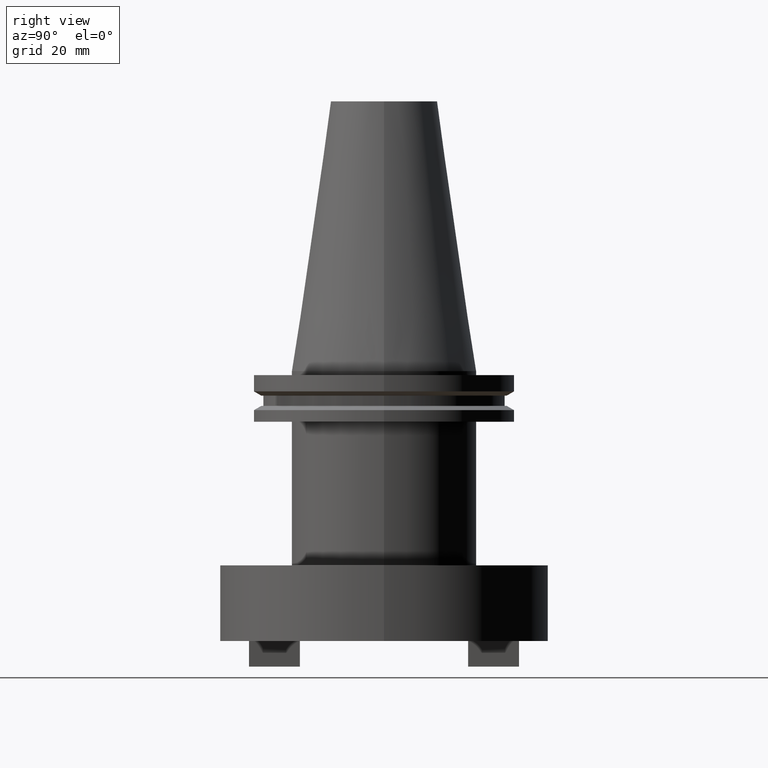
[diagram: clean part render]
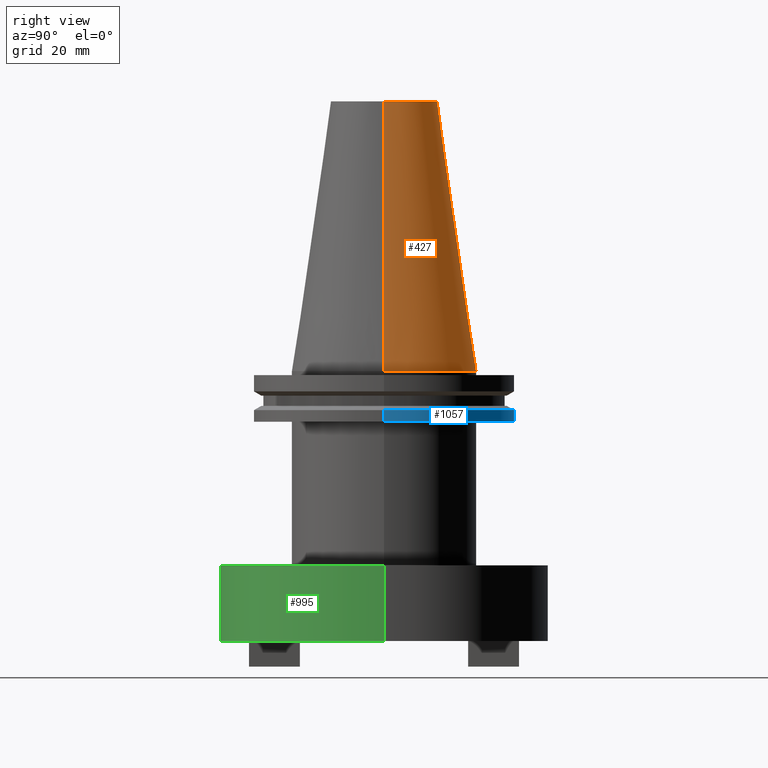
[diagram: same view with three faces highlighted in distinct colors, each labeled with its STEP entity id]
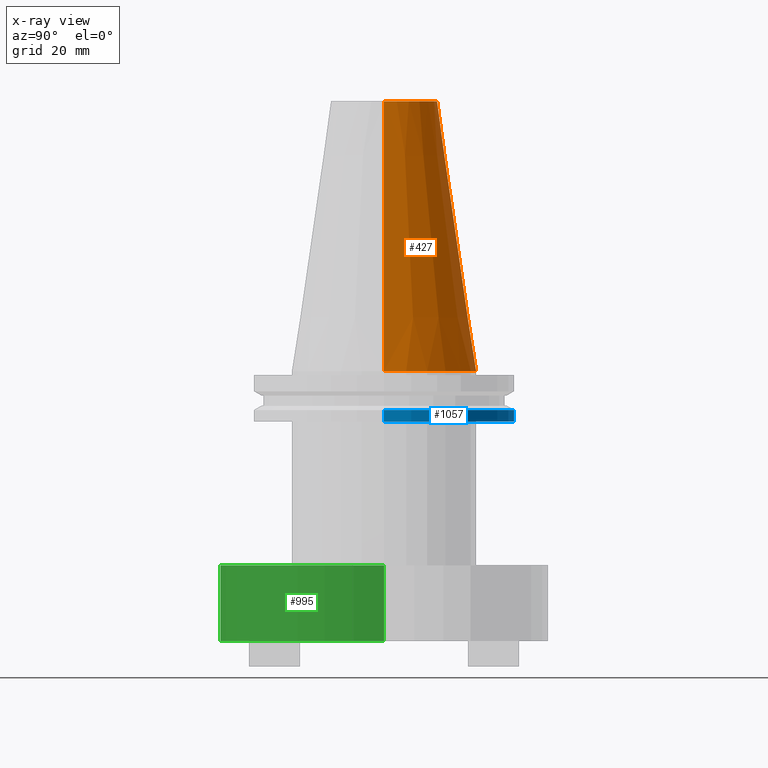
[diagram: x-ray of the same camera — body ghosted, the three highlighted faces saturated]
A machine part, right view with three faces highlighted in distinct colors.
The next image is the same camera in x-ray (body ghosted, the three faces saturated) — at least one of them is partly hidden behind the body in this view.
Their STEP definitions:

[orange] entity #427 — the highlighted conical surface has half-angle 8.297 deg.
#1 = DIRECTION ( 'NONE',  ( -0.000000000000000000, -0.000000000000000000, 1.000000000000000000 ) ) ;
#35 = ORIENTED_EDGE ( 'NONE', *, *, #868, .F. ) ;
#38 = LINE ( 'NONE', #616, #345 ) ;
#50 = EDGE_LOOP ( 'NONE', ( #35, #81, #740, #365 ) ) ;
#72 = DIRECTION ( 'NONE',  ( 1.000000000000000000, 0.000000000000000000, 0.000000000000000000 ) ) ;
#81 = ORIENTED_EDGE ( 'NONE', *, *, #658, .T. ) ;
#82 = DIRECTION ( 'NONE',  ( 1.000000000000000000, 0.000000000000000000, 0.000000000000000000 ) ) ;
#108 = AXIS2_PLACEMENT_3D ( 'NONE', #680, #1, #82 ) ;
#119 = DIRECTION ( 'NONE',  ( -1.000000000000000000, 0.000000000000000000, 0.000000000000000000 ) ) ;
#182 = VERTEX_POINT ( 'NONE', #665 ) ;
#204 = FACE_OUTER_BOUND ( 'NONE', #50, .T. ) ;
#261 = CIRCLE ( 'NONE', #966, 20.10819343178871321 ) ;
#267 = CARTESIAN_POINT ( 'NONE',  ( -20.10819343178871321, 0.000000000000000000, 101.5999999999999801 ) ) ;
#296 = VECTOR ( 'NONE', #1048, 999.9999999999998863 ) ;
#305 = VERTEX_POINT ( 'NONE', #267 ) ;
#333 = CIRCLE ( 'NONE', #108, 34.92499999999999005 ) ;
#336 = VERTEX_POINT ( 'NONE', #432 ) ;
#345 = VECTOR ( 'NONE', #790, 999.9999999999998863 ) ;
#365 = ORIENTED_EDGE ( 'NONE', *, *, #382, .F. ) ;
#382 = EDGE_CURVE ( 'NONE', #305, #336, #38, .T. ) ;
#427 = ADVANCED_FACE ( 'NONE', ( #204 ), #528, .T. ) ;
#432 = CARTESIAN_POINT ( 'NONE',  ( -34.92499999999999005, 0.000000000000000000, 0.000000000000000000 ) ) ;
#453 = CARTESIAN_POINT ( 'NONE',  ( 0.000000000000000000, 0.000000000000000000, 0.000000000000000000 ) ) ;
#490 = CARTESIAN_POINT ( 'NONE',  ( 0.000000000000000000, 0.000000000000000000, 101.5999999999999801 ) ) ;
#528 = CONICAL_SURFACE ( 'NONE', #999, 34.92499999999999005, 0.1448138465474119452 ) ;
#580 = EDGE_CURVE ( 'NONE', #182, #336, #333, .T. ) ;
#616 = CARTESIAN_POINT ( 'NONE',  ( -34.92499999999999005, 0.000000000000000000, 0.000000000000000000 ) ) ;
#658 = EDGE_CURVE ( 'NONE', #837, #182, #951, .T. ) ;
#665 = CARTESIAN_POINT ( 'NONE',  ( 34.92499999999999005, 4.277078946022130098E-15, 0.000000000000000000 ) ) ;
#680 = CARTESIAN_POINT ( 'NONE',  ( 0.000000000000000000, 0.000000000000000000, 0.000000000000000000 ) ) ;
#740 = ORIENTED_EDGE ( 'NONE', *, *, #580, .T. ) ;
#790 = DIRECTION ( 'NONE',  ( -0.1443082272672999988, 0.000000000000000000, -0.9895327864921755756 ) ) ;
#814 = CARTESIAN_POINT ( 'NONE',  ( 20.10819343178871321, 3.369811209154858606E-15, 101.5999999999999801 ) ) ;
#837 = VERTEX_POINT ( 'NONE', #814 ) ;
#868 = EDGE_CURVE ( 'NONE', #837, #305, #261, .T. ) ;
#872 = CARTESIAN_POINT ( 'NONE',  ( 34.92499999999999005, 4.277078946022130098E-15, 0.000000000000000000 ) ) ;
#873 = DIRECTION ( 'NONE',  ( 0.000000000000000000, 0.000000000000000000, -1.000000000000000000 ) ) ;
#951 = LINE ( 'NONE', #872, #296 ) ;
#966 = AXIS2_PLACEMENT_3D ( 'NONE', #490, #974, #72 ) ;
#974 = DIRECTION ( 'NONE',  ( -0.000000000000000000, -0.000000000000000000, 1.000000000000000000 ) ) ;
#999 = AXIS2_PLACEMENT_3D ( 'NONE', #453, #873, #119 ) ;
#1048 = DIRECTION ( 'NONE',  ( 0.1443082272672999988, 1.767266086135277066E-17, -0.9895327864921755756 ) ) ;

[blue] entity #1057 — the highlighted cylindrical surface (partial cylindrical patch) has radius 49.215 mm, axis along (-0, -0, 1).
#6 = CARTESIAN_POINT ( 'NONE',  ( 0.000000000000000000, 0.000000000000000000, 101.5999999999999943 ) ) ;
#20 = EDGE_CURVE ( 'NONE', #822, #290, #525, .T. ) ;
#105 = VECTOR ( 'NONE', #660, 1000.000000000000000 ) ;
#106 = FACE_OUTER_BOUND ( 'NONE', #535, .T. ) ;
#164 = EDGE_CURVE ( 'NONE', #941, #822, #217, .T. ) ;
#183 = DIRECTION ( 'NONE',  ( 1.000000000000000000, 0.000000000000000000, 0.000000000000000000 ) ) ;
#191 = AXIS2_PLACEMENT_3D ( 'NONE', #199, #953, #870 ) ;
#199 = CARTESIAN_POINT ( 'NONE',  ( 0.000000000000000000, 0.000000000000000000, -19.04999999999999716 ) ) ;
#217 = LINE ( 'NONE', #562, #105 ) ;
#253 = CARTESIAN_POINT ( 'NONE',  ( 49.21499999999998920, 0.000000000000000000, -19.04999999999999716 ) ) ;
#290 = VERTEX_POINT ( 'NONE', #448 ) ;
#340 = EDGE_CURVE ( 'NONE', #367, #290, #926, .T. ) ;
#357 = DIRECTION ( 'NONE',  ( -0.000000000000000000, -0.000000000000000000, 1.000000000000000000 ) ) ;
#367 = VERTEX_POINT ( 'NONE', #671 ) ;
#394 = EDGE_CURVE ( 'NONE', #941, #367, #631, .T. ) ;
#438 = DIRECTION ( 'NONE',  ( -0.000000000000000000, -0.000000000000000000, 1.000000000000000000 ) ) ;
#448 = CARTESIAN_POINT ( 'NONE',  ( -49.21499999999998920, 6.027099222003697037E-15, -14.65761014474876944 ) ) ;
#525 = CIRCLE ( 'NONE', #904, 49.21499999999998920 ) ;
#535 = EDGE_LOOP ( 'NONE', ( #679, #613, #772, #947 ) ) ;
#561 = CARTESIAN_POINT ( 'NONE',  ( 49.21499999999998920, 0.000000000000000000, -14.65761014474876944 ) ) ;
#562 = CARTESIAN_POINT ( 'NONE',  ( 49.21499999999998920, 0.000000000000000000, 101.5999999999999943 ) ) ;
#591 = VECTOR ( 'NONE', #357, 1000.000000000000000 ) ;
#613 = ORIENTED_EDGE ( 'NONE', *, *, #340, .T. ) ;
#631 = CIRCLE ( 'NONE', #191, 49.21499999999998920 ) ;
#660 = DIRECTION ( 'NONE',  ( -0.000000000000000000, -0.000000000000000000, 1.000000000000000000 ) ) ;
#671 = CARTESIAN_POINT ( 'NONE',  ( -49.21499999999998920, 6.027099222003697037E-15, -19.04999999999999716 ) ) ;
#679 = ORIENTED_EDGE ( 'NONE', *, *, #394, .T. ) ;
#681 = CYLINDRICAL_SURFACE ( 'NONE', #803, 49.21499999999998920 ) ;
#762 = CARTESIAN_POINT ( 'NONE',  ( -49.21499999999998920, 6.027099222003697037E-15, 101.5999999999999943 ) ) ;
#769 = DIRECTION ( 'NONE',  ( 1.000000000000000000, 0.000000000000000000, 0.000000000000000000 ) ) ;
#772 = ORIENTED_EDGE ( 'NONE', *, *, #20, .F. ) ;
#803 = AXIS2_PLACEMENT_3D ( 'NONE', #6, #848, #183 ) ;
#822 = VERTEX_POINT ( 'NONE', #561 ) ;
#848 = DIRECTION ( 'NONE',  ( -0.000000000000000000, -0.000000000000000000, 1.000000000000000000 ) ) ;
#870 = DIRECTION ( 'NONE',  ( 1.000000000000000000, 0.000000000000000000, 0.000000000000000000 ) ) ;
#904 = AXIS2_PLACEMENT_3D ( 'NONE', #935, #438, #769 ) ;
#926 = LINE ( 'NONE', #762, #591 ) ;
#935 = CARTESIAN_POINT ( 'NONE',  ( 0.000000000000000000, 0.000000000000000000, -14.65761014474876944 ) ) ;
#941 = VERTEX_POINT ( 'NONE', #253 ) ;
#947 = ORIENTED_EDGE ( 'NONE', *, *, #164, .F. ) ;
#953 = DIRECTION ( 'NONE',  ( -0.000000000000000000, -0.000000000000000000, 1.000000000000000000 ) ) ;
#1057 = ADVANCED_FACE ( 'NONE', ( #106 ), #681, .T. ) ;

[green] entity #995 — the highlighted cylindrical surface (partial cylindrical patch) has radius 61.9 mm, axis along (-0, -0, 1).
#13 = CIRCLE ( 'NONE', #634, 61.89999999999999858 ) ;
#36 = AXIS2_PLACEMENT_3D ( 'NONE', #479, #326, #482 ) ;
#95 = ORIENTED_EDGE ( 'NONE', *, *, #934, .F. ) ;
#143 = VERTEX_POINT ( 'NONE', #389 ) ;
#212 = CARTESIAN_POINT ( 'NONE',  ( 61.89999999999999858, 0.000000000000000000, 0.000000000000000000 ) ) ;
#269 = VERTEX_POINT ( 'NONE', #849 ) ;
#291 = LINE ( 'NONE', #212, #544 ) ;
#298 = AXIS2_PLACEMENT_3D ( 'NONE', #1086, #993, #492 ) ;
#325 = ORIENTED_EDGE ( 'NONE', *, *, #807, .T. ) ;
#326 = DIRECTION ( 'NONE',  ( -0.000000000000000000, -0.000000000000000000, 1.000000000000000000 ) ) ;
#359 = VERTEX_POINT ( 'NONE', #579 ) ;
#389 = CARTESIAN_POINT ( 'NONE',  ( -61.89999999999999858, 7.580563686722116084E-15, -73.09999999999999432 ) ) ;
#392 = DIRECTION ( 'NONE',  ( -0.000000000000000000, -0.000000000000000000, 1.000000000000000000 ) ) ;
#465 = CARTESIAN_POINT ( 'NONE',  ( -61.89999999999999858, 7.580563686722116084E-15, 0.000000000000000000 ) ) ;
#479 = CARTESIAN_POINT ( 'NONE',  ( 0.000000000000000000, 0.000000000000000000, -101.5999999999999943 ) ) ;
#482 = DIRECTION ( 'NONE',  ( 1.000000000000000000, 0.000000000000000000, 0.000000000000000000 ) ) ;
#483 = FACE_OUTER_BOUND ( 'NONE', #567, .T. ) ;
#492 = DIRECTION ( 'NONE',  ( 1.000000000000000000, 0.000000000000000000, 0.000000000000000000 ) ) ;
#536 = DIRECTION ( 'NONE',  ( -0.000000000000000000, -0.000000000000000000, 1.000000000000000000 ) ) ;
#544 = VECTOR ( 'NONE', #716, 1000.000000000000000 ) ;
#567 = EDGE_LOOP ( 'NONE', ( #619, #325, #661, #95 ) ) ;
#579 = CARTESIAN_POINT ( 'NONE',  ( 61.89999999999999858, 0.000000000000000000, -73.09999999999999432 ) ) ;
#618 = DIRECTION ( 'NONE',  ( 1.000000000000000000, 0.000000000000000000, 0.000000000000000000 ) ) ;
#619 = ORIENTED_EDGE ( 'NONE', *, *, #711, .F. ) ;
#634 = AXIS2_PLACEMENT_3D ( 'NONE', #1010, #392, #618 ) ;
#650 = EDGE_CURVE ( 'NONE', #1004, #359, #291, .T. ) ;
#661 = ORIENTED_EDGE ( 'NONE', *, *, #650, .T. ) ;
#677 = CARTESIAN_POINT ( 'NONE',  ( 61.89999999999999858, 0.000000000000000000, -101.5999999999999943 ) ) ;
#711 = EDGE_CURVE ( 'NONE', #269, #143, #787, .T. ) ;
#716 = DIRECTION ( 'NONE',  ( -0.000000000000000000, -0.000000000000000000, 1.000000000000000000 ) ) ;
#787 = LINE ( 'NONE', #465, #928 ) ;
#807 = EDGE_CURVE ( 'NONE', #269, #1004, #878, .T. ) ;
#834 = CYLINDRICAL_SURFACE ( 'NONE', #298, 61.89999999999999858 ) ;
#849 = CARTESIAN_POINT ( 'NONE',  ( -61.89999999999999858, 7.580563686722116084E-15, -101.5999999999999943 ) ) ;
#878 = CIRCLE ( 'NONE', #36, 61.89999999999999858 ) ;
#928 = VECTOR ( 'NONE', #536, 1000.000000000000000 ) ;
#934 = EDGE_CURVE ( 'NONE', #143, #359, #13, .T. ) ;
#993 = DIRECTION ( 'NONE',  ( -0.000000000000000000, -0.000000000000000000, 1.000000000000000000 ) ) ;
#995 = ADVANCED_FACE ( 'NONE', ( #483 ), #834, .T. ) ;
#1004 = VERTEX_POINT ( 'NONE', #677 ) ;
#1010 = CARTESIAN_POINT ( 'NONE',  ( 0.000000000000000000, 0.000000000000000000, -73.09999999999999432 ) ) ;
#1086 = CARTESIAN_POINT ( 'NONE',  ( 0.000000000000000000, 0.000000000000000000, 0.000000000000000000 ) ) ;